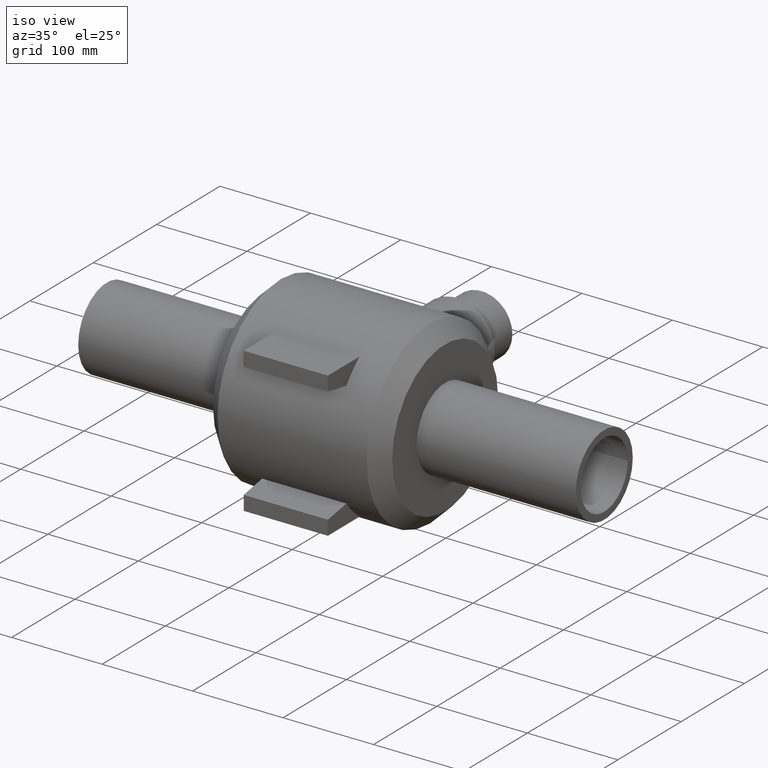
[diagram: clean part render]
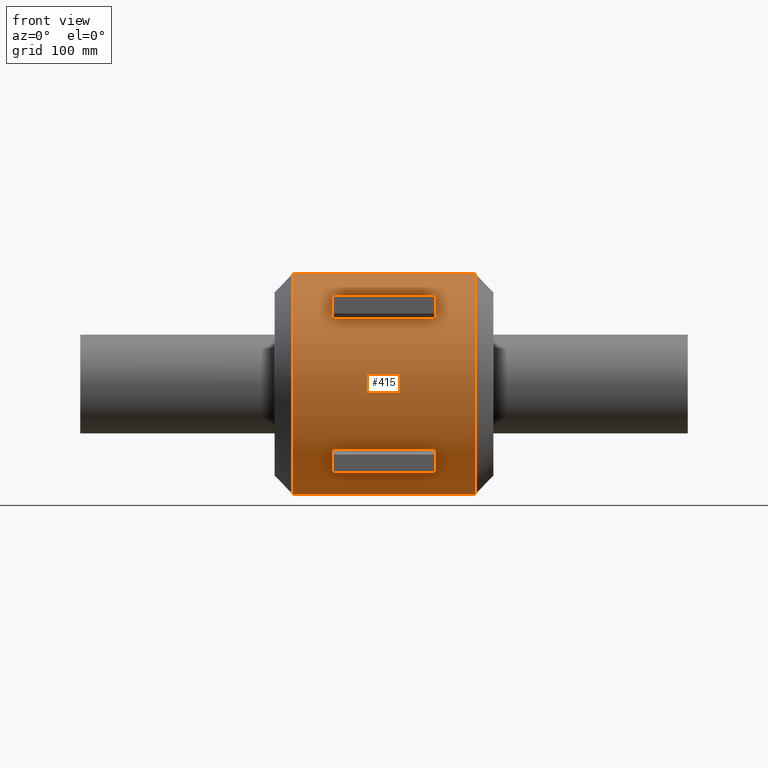
[diagram: tour spotlight — one face highlighted and labeled with its STEP entity id]
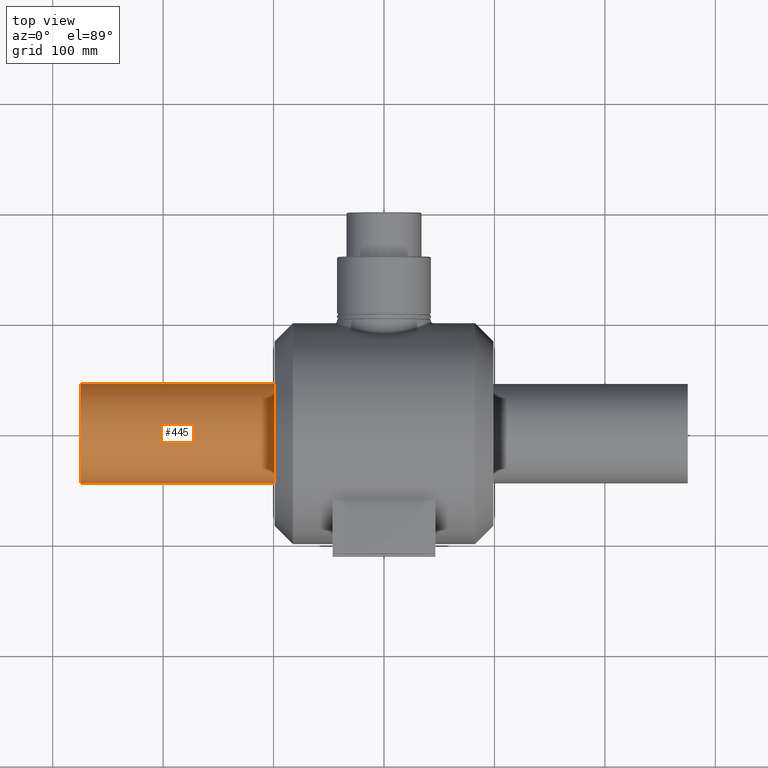
[diagram: tour spotlight — one face highlighted and labeled with its STEP entity id]
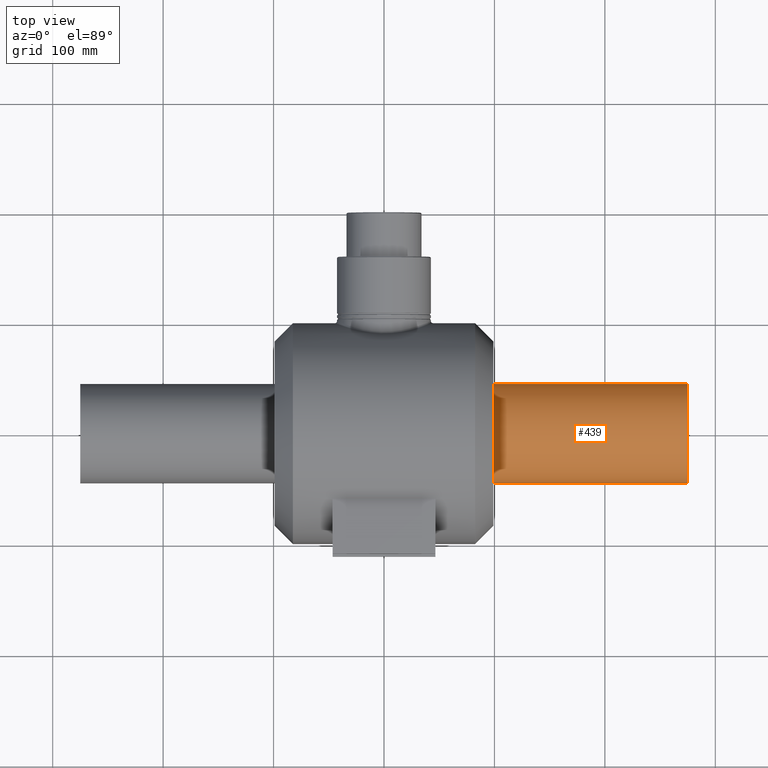
[diagram: tour spotlight — one face highlighted and labeled with its STEP entity id]
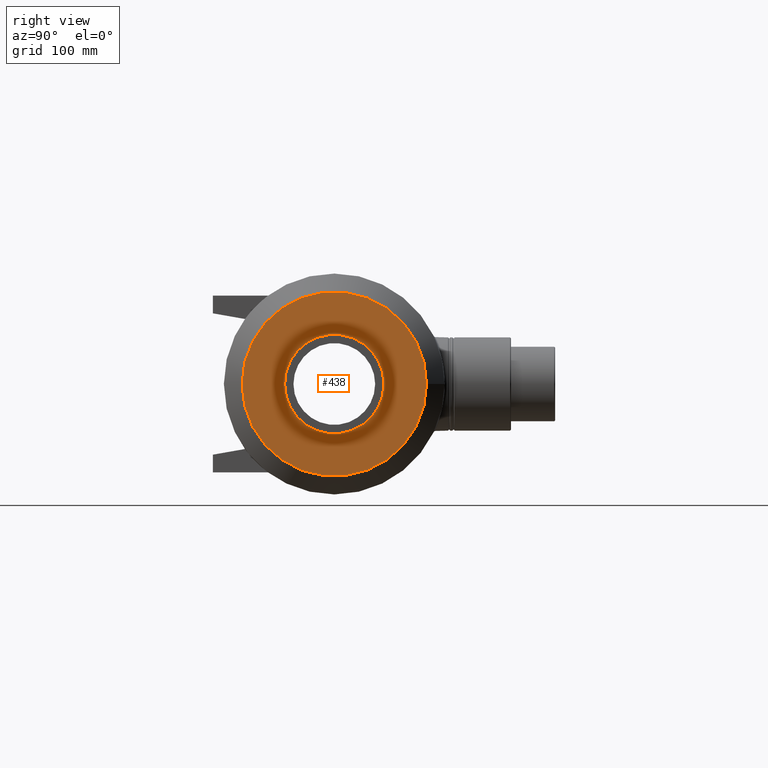
[diagram: tour spotlight — one face highlighted and labeled with its STEP entity id]
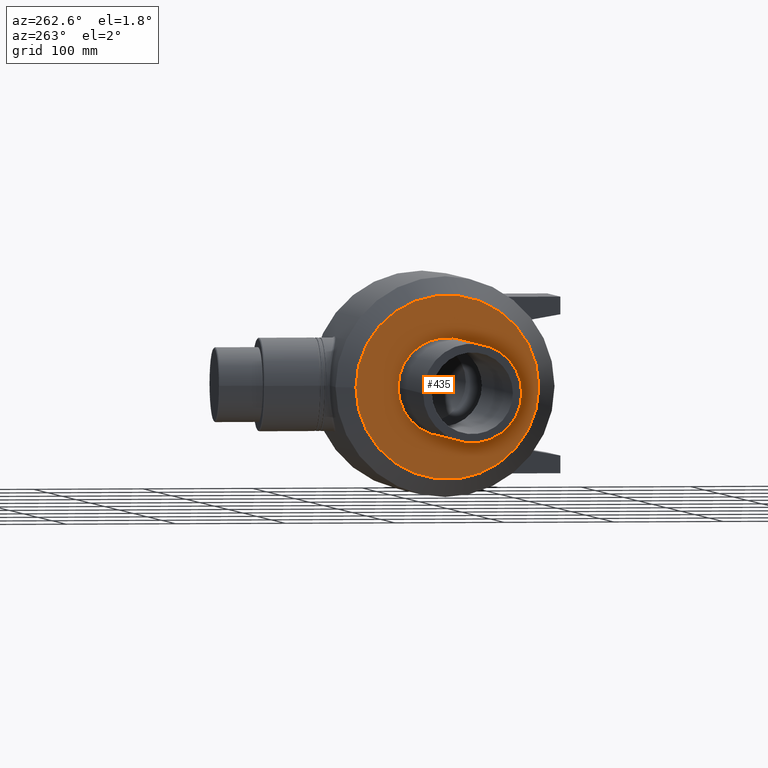
[diagram: tour spotlight — one face highlighted and labeled with its STEP entity id]
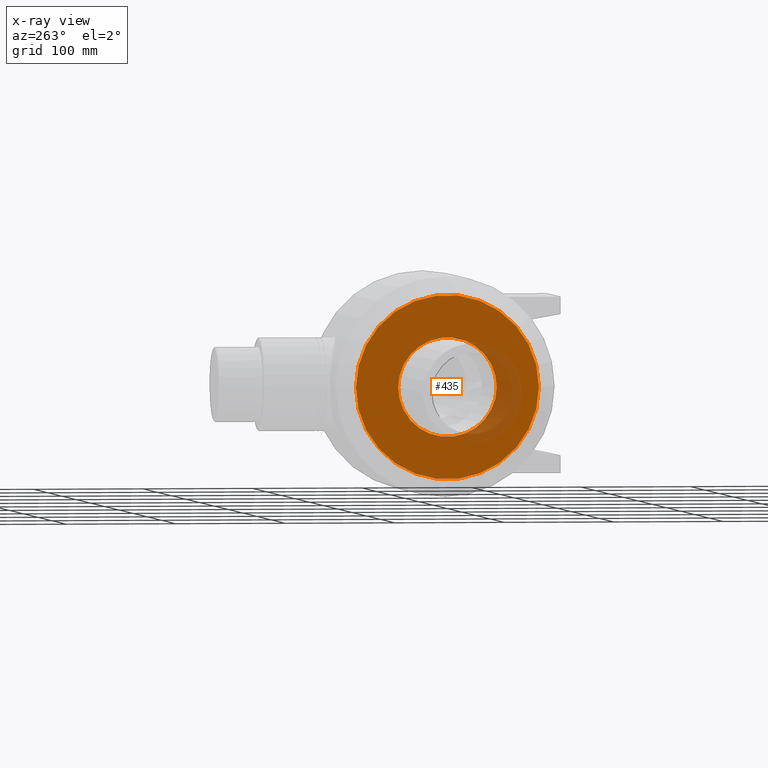
[diagram: x-ray of the same camera — body ghosted, this tour face saturated]
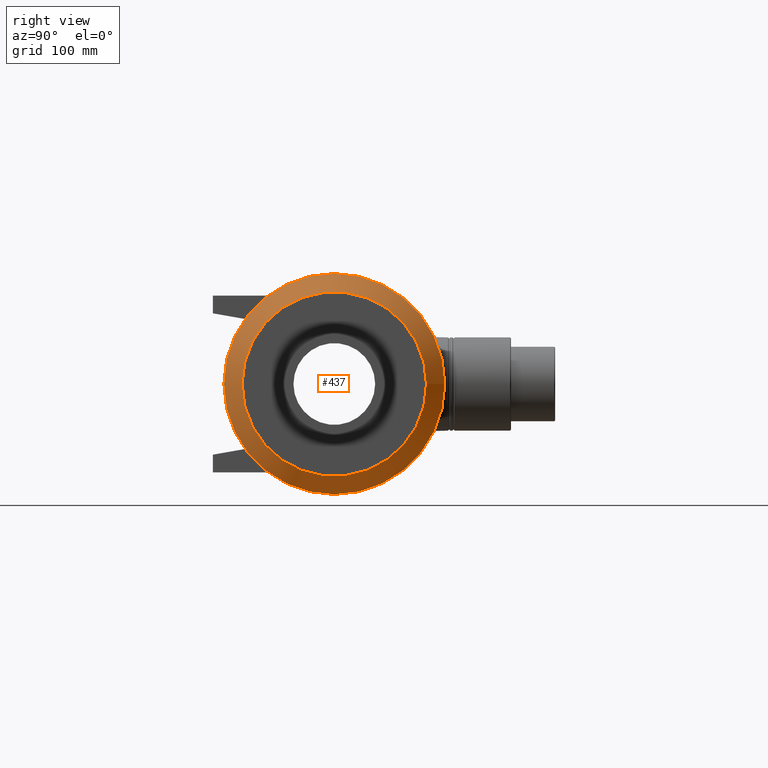
[diagram: tour spotlight — one face highlighted and labeled with its STEP entity id]
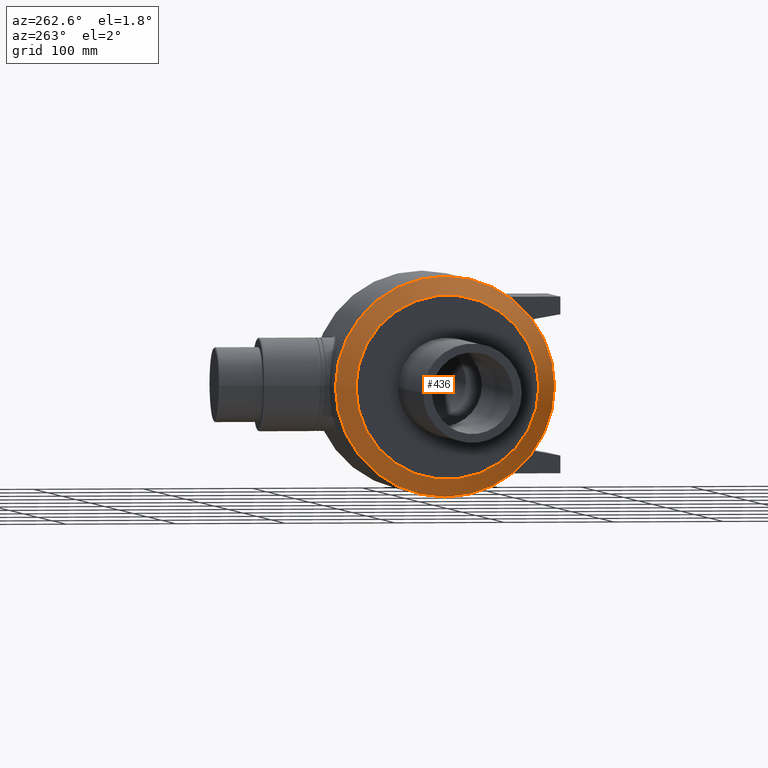
[diagram: tour spotlight — one face highlighted and labeled with its STEP entity id]
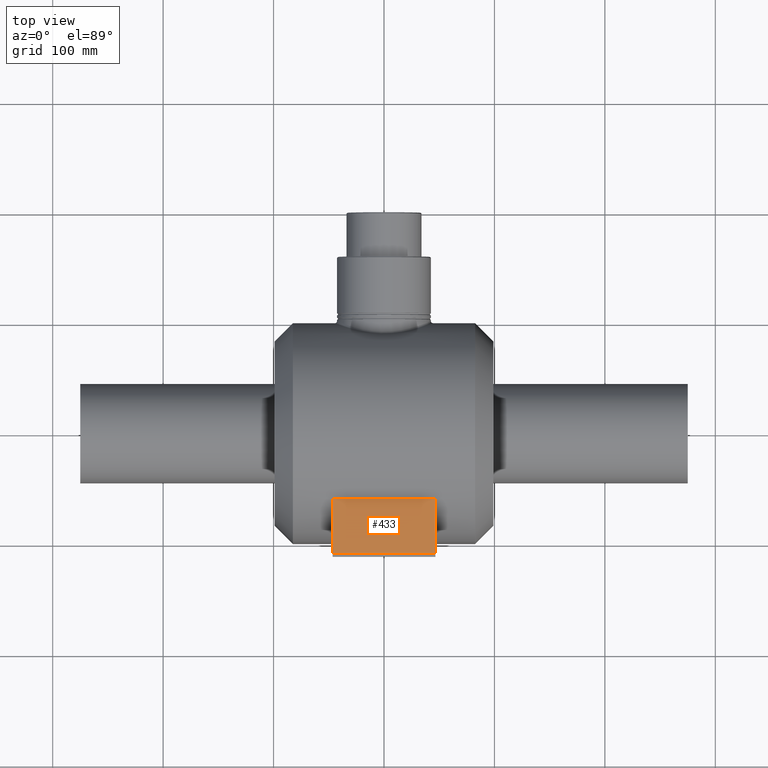
[diagram: tour spotlight — one face highlighted and labeled with its STEP entity id]
A machine part: a face-by-face anatomy tour. The part has 33 B-rep faces; the first image is the clean iso view, then the 8 largest visible faces are spotlighted one at a time (largest first), each with its STEP entity span.

Face 1 — front view, entity #415. In plain terms, the highlighted cylindrical surface (bore or boss wall) has radius 100 mm, axis along (1, 0, 0).
Definition (entity closure, byte-faithful):
#38=LINE('',#835,#58);
#39=LINE('',#838,#59);
#40=LINE('',#843,#60);
#41=LINE('',#846,#61);
#58=VECTOR('',#522,93.);
#59=VECTOR('',#525,93.);
#60=VECTOR('',#528,93.);
#61=VECTOR('',#531,93.);
#79=FACE_BOUND('',#148,.T.);
#80=FACE_BOUND('',#149,.T.);
#81=FACE_BOUND('',#150,.T.);
#82=FACE_BOUND('',#151,.T.);
#104=CYLINDRICAL_SURFACE('',#451,100.);
#114=FACE_OUTER_BOUND('',#147,.T.);
#147=EDGE_LOOP('',(#322));
#148=EDGE_LOOP('',(#323));
#149=EDGE_LOOP('',(#324,#325,#326,#327));
#150=EDGE_LOOP('',(#328,#329,#330,#331));
#151=EDGE_LOOP('',(#332));
#202=B_SPLINE_CURVE_WITH_KNOTS('',3,(#798,#799,#800,#801,#802,#803,#804,
#805,#806,#807,#808,#809,#810,#811,#812,#813,#814,#815,#816,#817,#818,#819,
#820,#821,#822),.UNSPECIFIED.,.T.,.F.,(4,1,1,1,1,1,1,1,1,1,1,1,1,1,1,1,
1,1,1,1,1,1,4),(-38.9669943776629,-38.0392087972423,-37.1114232168218,-35.2558520559807,
-34.01880461542,-32.7817571748593,-31.5447097342985,-30.3076622937378,-29.0706148531771,
-27.8335674126163,-26.5965199720556,-25.3594725314949,-24.7409488112145,
-24.1224250909342,-22.8853776503734,-21.6483302098127,-20.411282769252,
-19.4834971888314,-18.5557116084109,-16.7001404475698,-14.8445692867287,
-13.9167837063082,-12.9889981258876),.UNSPECIFIED.);
#205=CIRCLE('',#452,100.);
#206=CIRCLE('',#453,100.);
#207=CIRCLE('',#454,100.);
#208=CIRCLE('',#455,100.);
#209=CIRCLE('',#456,100.);
#210=CIRCLE('',#457,100.);
#229=VERTEX_POINT('',#770);
#232=VERTEX_POINT('',#827);
#233=VERTEX_POINT('',#829);
#234=VERTEX_POINT('',#831);
#235=VERTEX_POINT('',#832);
#236=VERTEX_POINT('',#834);
#237=VERTEX_POINT('',#836);
#238=VERTEX_POINT('',#839);
#239=VERTEX_POINT('',#840);
#240=VERTEX_POINT('',#842);
#241=VERTEX_POINT('',#844);
#270=EDGE_CURVE('',#229,#229,#202,.T.);
#272=EDGE_CURVE('',#232,#232,#205,.T.);
#273=EDGE_CURVE('',#233,#233,#206,.T.);
#274=EDGE_CURVE('',#234,#235,#207,.T.);
#275=EDGE_CURVE('',#235,#236,#38,.T.);
#276=EDGE_CURVE('',#236,#237,#208,.T.);
#277=EDGE_CURVE('',#237,#234,#39,.T.);
#278=EDGE_CURVE('',#238,#239,#209,.T.);
#279=EDGE_CURVE('',#239,#240,#40,.T.);
#280=EDGE_CURVE('',#240,#241,#210,.T.);
#281=EDGE_CURVE('',#241,#238,#41,.T.);
#322=ORIENTED_EDGE('',*,*,#272,.T.);
#323=ORIENTED_EDGE('',*,*,#273,.F.);
#324=ORIENTED_EDGE('',*,*,#274,.T.);
#325=ORIENTED_EDGE('',*,*,#275,.T.);
#326=ORIENTED_EDGE('',*,*,#276,.T.);
#327=ORIENTED_EDGE('',*,*,#277,.T.);
#328=ORIENTED_EDGE('',*,*,#278,.T.);
#329=ORIENTED_EDGE('',*,*,#279,.T.);
#330=ORIENTED_EDGE('',*,*,#280,.T.);
#331=ORIENTED_EDGE('',*,*,#281,.T.);
#332=ORIENTED_EDGE('',*,*,#270,.F.);
#415=ADVANCED_FACE('',(#114,#79,#80,#81,#82),#104,.T.);
#451=AXIS2_PLACEMENT_3D('',#826,#514,#515);
#452=AXIS2_PLACEMENT_3D('',#828,#516,#517);
#453=AXIS2_PLACEMENT_3D('',#830,#518,#519);
#454=AXIS2_PLACEMENT_3D('',#833,#520,#521);
#455=AXIS2_PLACEMENT_3D('',#837,#523,#524);
#456=AXIS2_PLACEMENT_3D('',#841,#526,#527);
#457=AXIS2_PLACEMENT_3D('',#845,#529,#530);
#514=DIRECTION('center_axis',(1.,0.,0.));
#515=DIRECTION('ref_axis',(0.,1.,0.));
#516=DIRECTION('center_axis',(1.,0.,0.));
#517=DIRECTION('ref_axis',(0.,0.,-1.));
#518=DIRECTION('center_axis',(1.,0.,0.));
#519=DIRECTION('ref_axis',(0.,0.,-1.));
#520=DIRECTION('center_axis',(-1.,0.,0.));
#521=DIRECTION('ref_axis',(0.,1.,0.));
#522=DIRECTION('',(1.,0.,0.));
#523=DIRECTION('center_axis',(1.,0.,0.));
#524=DIRECTION('ref_axis',(0.,1.,0.));
#525=DIRECTION('',(-1.,0.,0.));
#526=DIRECTION('center_axis',(-1.,0.,0.));
#527=DIRECTION('ref_axis',(0.,1.,0.));
#528=DIRECTION('',(1.,0.,0.));
#529=DIRECTION('center_axis',(1.,0.,0.));
#530=DIRECTION('ref_axis',(0.,1.,0.));
#531=DIRECTION('',(-1.,0.,0.));
#770=CARTESIAN_POINT('',(-2.77555756156289E-15,90.0617984914969,-43.4611602753196));
#798=CARTESIAN_POINT('Ctrl Pts',(-5.18352559142492E-5,90.0613990169925,
-43.4612245992563));
#799=CARTESIAN_POINT('Ctrl Pts',(-3.34835087927713,90.0612431636837,-43.4609908259413));
#800=CARTESIAN_POINT('Ctrl Pts',(-10.044498601973,90.4312887069653,-42.7074162645662));
#801=CARTESIAN_POINT('Ctrl Pts',(-22.6166897920548,92.4447370695368,-38.3240439548533));
#802=CARTESIAN_POINT('Ctrl Pts',(-33.888494701673,95.8831817137045,-29.4495645104643));
#803=CARTESIAN_POINT('Ctrl Pts',(-41.6958972374103,98.9249892342406,-16.2884966545444));
#804=CARTESIAN_POINT('Ctrl Pts',(-44.7580109915345,100.24262482037,-3.35187346169151));
#805=CARTESIAN_POINT('Ctrl Pts',(-43.7208884575826,99.7878306526563,9.95863907108315));
#806=CARTESIAN_POINT('Ctrl Pts',(-38.7612391833864,97.7345072755358,22.1969530968394));
#807=CARTESIAN_POINT('Ctrl Pts',(-30.5020502131725,94.7847462345294,32.3217410221326));
#808=CARTESIAN_POINT('Ctrl Pts',(-19.6149246373078,91.8638008142278,39.6678313874762));
#809=CARTESIAN_POINT('Ctrl Pts',(-6.79500124078936,89.9863510190237,43.6237950295));
#810=CARTESIAN_POINT('Ctrl Pts',(4.52960772377941,89.9851505132632,43.6250097289319));
#811=CARTESIAN_POINT('Ctrl Pts',(13.2076710794206,90.9248126216939,41.6455990976097));
#812=CARTESIAN_POINT('Ctrl Pts',(21.4270324919523,92.3506899763053,38.4440156936147));
#813=CARTESIAN_POINT('Ctrl Pts',(30.5036613107744,94.7849754637139,32.3201594101137));
#814=CARTESIAN_POINT('Ctrl Pts',(38.7613802810821,97.7346061130992,22.1978828444219));
#815=CARTESIAN_POINT('Ctrl Pts',(43.3069885685676,99.6168988894181,10.9756005103851));
#816=CARTESIAN_POINT('Ctrl Pts',(44.5827813424108,100.162893676737,0.00323395416983575));
#817=CARTESIAN_POINT('Ctrl Pts',(43.0520511504638,99.5115945492606,-13.1825976018405));
#818=CARTESIAN_POINT('Ctrl Pts',(35.626559683415,96.4212115999915,-28.0991899085921));
#819=CARTESIAN_POINT('Ctrl Pts',(22.614516443001,92.4414337998148,-38.3192026391038));
#820=CARTESIAN_POINT('Ctrl Pts',(10.0452956621543,90.432223826818,-42.7088189044561));
#821=CARTESIAN_POINT('Ctrl Pts',(3.34824720876529,90.0615548703013,-43.4614583725713));
#822=CARTESIAN_POINT('Ctrl Pts',(-5.18352559142492E-5,90.0613990169925,
-43.4612245992563));
#826=CARTESIAN_POINT('Origin',(0.,0.,0.));
#827=CARTESIAN_POINT('',(-82.5,100.,0.));
#828=CARTESIAN_POINT('Origin',(-82.5,0.,0.));
#829=CARTESIAN_POINT('',(82.5,100.,0.));
#830=CARTESIAN_POINT('Origin',(82.5,0.,0.));
#831=CARTESIAN_POINT('',(-46.5,-80.8432575315872,58.8588796332505));
#832=CARTESIAN_POINT('',(-46.5,-60.,80.));
#833=CARTESIAN_POINT('Origin',(-46.5,0.,0.));
#834=CARTESIAN_POINT('',(46.5,-60.,80.));
#835=CARTESIAN_POINT('',(0.,-60.,80.));
#836=CARTESIAN_POINT('',(46.5,-80.8432575315872,58.8588796332505));
#837=CARTESIAN_POINT('Origin',(46.5,0.,0.));
#838=CARTESIAN_POINT('',(0.,-80.8432575315872,58.8588796332505));
#839=CARTESIAN_POINT('',(-46.5,-60.,-80.));
#840=CARTESIAN_POINT('',(-46.5,-80.8432575315872,-58.8588796332505));
#841=CARTESIAN_POINT('Origin',(-46.5,0.,0.));
#842=CARTESIAN_POINT('',(46.5,-80.8432575315872,-58.8588796332505));
#843=CARTESIAN_POINT('',(0.,-80.8432575315872,-58.8588796332505));
#844=CARTESIAN_POINT('',(46.5,-60.,-80.));
#845=CARTESIAN_POINT('Origin',(46.5,0.,0.));
#846=CARTESIAN_POINT('',(0.,-60.,-80.));

Face 2 — top view, entity #445. In plain terms, the highlighted cylindrical surface (bore or boss wall) has radius 45 mm, axis along (1, 0, 0).
Definition (entity closure, byte-faithful):
#102=FACE_BOUND('',#200,.T.);
#111=CYLINDRICAL_SURFACE('',#505,45.);
#143=FACE_OUTER_BOUND('',#199,.T.);
#199=EDGE_LOOP('',(#410));
#200=EDGE_LOOP('',(#411));
#220=CIRCLE('',#487,45.);
#228=CIRCLE('',#504,45.);
#259=VERTEX_POINT('',#909);
#267=VERTEX_POINT('',#934);
#307=EDGE_CURVE('',#259,#259,#220,.T.);
#315=EDGE_CURVE('',#267,#267,#228,.T.);
#410=ORIENTED_EDGE('',*,*,#307,.F.);
#411=ORIENTED_EDGE('',*,*,#315,.T.);
#445=ADVANCED_FACE('',(#143,#102),#111,.T.);
#487=AXIS2_PLACEMENT_3D('',#910,#606,#607);
#504=AXIS2_PLACEMENT_3D('',#935,#640,#641);
#505=AXIS2_PLACEMENT_3D('',#936,#642,#643);
#606=DIRECTION('center_axis',(1.,0.,0.));
#607=DIRECTION('ref_axis',(0.,0.,-1.));
#640=DIRECTION('center_axis',(1.,0.,0.));
#641=DIRECTION('ref_axis',(0.,0.,-1.));
#642=DIRECTION('center_axis',(1.,0.,0.));
#643=DIRECTION('ref_axis',(0.,1.,0.));
#909=CARTESIAN_POINT('',(-99.,45.,0.));
#910=CARTESIAN_POINT('Origin',(-99.,0.,0.));
#934=CARTESIAN_POINT('',(-275.,45.,0.));
#935=CARTESIAN_POINT('Origin',(-275.,0.,0.));
#936=CARTESIAN_POINT('Origin',(-187.,0.,0.));

Face 3 — top view, entity #439. In plain terms, the highlighted cylindrical surface (bore or boss wall) has radius 45 mm, axis along (1, 0, 0).
Definition (entity closure, byte-faithful):
#95=FACE_BOUND('',#188,.T.);
#108=CYLINDRICAL_SURFACE('',#493,45.);
#138=FACE_OUTER_BOUND('',#187,.T.);
#187=EDGE_LOOP('',(#398));
#188=EDGE_LOOP('',(#399));
#222=CIRCLE('',#492,45.);
#223=CIRCLE('',#494,45.);
#261=VERTEX_POINT('',#916);
#262=VERTEX_POINT('',#919);
#309=EDGE_CURVE('',#261,#261,#222,.T.);
#310=EDGE_CURVE('',#262,#262,#223,.T.);
#398=ORIENTED_EDGE('',*,*,#310,.F.);
#399=ORIENTED_EDGE('',*,*,#309,.T.);
#439=ADVANCED_FACE('',(#138,#95),#108,.T.);
#492=AXIS2_PLACEMENT_3D('',#917,#616,#617);
#493=AXIS2_PLACEMENT_3D('',#918,#618,#619);
#494=AXIS2_PLACEMENT_3D('',#920,#620,#621);
#616=DIRECTION('center_axis',(1.,0.,0.));
#617=DIRECTION('ref_axis',(0.,0.,-1.));
#618=DIRECTION('center_axis',(1.,0.,0.));
#619=DIRECTION('ref_axis',(0.,1.,0.));
#620=DIRECTION('center_axis',(1.,0.,0.));
#621=DIRECTION('ref_axis',(0.,0.,-1.));
#916=CARTESIAN_POINT('',(99.,45.,0.));
#917=CARTESIAN_POINT('Origin',(99.,0.,0.));
#918=CARTESIAN_POINT('Origin',(187.,0.,0.));
#919=CARTESIAN_POINT('',(275.,45.,0.));
#920=CARTESIAN_POINT('Origin',(275.,0.,0.));

Face 4 — right view, entity #438. In plain terms, the highlighted planar face has unit normal (1, 0, 0).
Definition (entity closure, byte-faithful):
#31=PLANE('',#491);
#94=FACE_BOUND('',#186,.T.);
#137=FACE_OUTER_BOUND('',#185,.T.);
#185=EDGE_LOOP('',(#396));
#186=EDGE_LOOP('',(#397));
#221=CIRCLE('',#490,83.5);
#222=CIRCLE('',#492,45.);
#260=VERTEX_POINT('',#913);
#261=VERTEX_POINT('',#916);
#308=EDGE_CURVE('',#260,#260,#221,.T.);
#309=EDGE_CURVE('',#261,#261,#222,.T.);
#396=ORIENTED_EDGE('',*,*,#308,.T.);
#397=ORIENTED_EDGE('',*,*,#309,.F.);
#438=ADVANCED_FACE('',(#137,#94),#31,.T.);
#490=AXIS2_PLACEMENT_3D('',#914,#612,#613);
#491=AXIS2_PLACEMENT_3D('',#915,#614,#615);
#492=AXIS2_PLACEMENT_3D('',#917,#616,#617);
#612=DIRECTION('center_axis',(1.,0.,0.));
#613=DIRECTION('ref_axis',(0.,0.,-1.));
#614=DIRECTION('center_axis',(1.,0.,0.));
#615=DIRECTION('ref_axis',(0.,0.,-1.));
#616=DIRECTION('center_axis',(1.,0.,0.));
#617=DIRECTION('ref_axis',(0.,0.,-1.));
#913=CARTESIAN_POINT('',(99.,83.5,0.));
#914=CARTESIAN_POINT('Origin',(99.,0.,0.));
#915=CARTESIAN_POINT('Origin',(99.,45.,0.));
#916=CARTESIAN_POINT('',(99.,45.,0.));
#917=CARTESIAN_POINT('Origin',(99.,0.,0.));

Face 5 — auxiliary view, entity #435. An x-ray twin of the same camera follows (body ghosted, this face saturated) — the face is partly hidden behind the body. In plain terms, the highlighted planar face has unit normal (-1, 0, 0).
Definition (entity closure, byte-faithful):
#30=PLANE('',#485);
#91=FACE_BOUND('',#180,.T.);
#134=FACE_OUTER_BOUND('',#179,.T.);
#179=EDGE_LOOP('',(#390));
#180=EDGE_LOOP('',(#391));
#219=CIRCLE('',#486,83.5);
#220=CIRCLE('',#487,45.);
#258=VERTEX_POINT('',#907);
#259=VERTEX_POINT('',#909);
#306=EDGE_CURVE('',#258,#258,#219,.T.);
#307=EDGE_CURVE('',#259,#259,#220,.T.);
#390=ORIENTED_EDGE('',*,*,#306,.F.);
#391=ORIENTED_EDGE('',*,*,#307,.T.);
#435=ADVANCED_FACE('',(#134,#91),#30,.T.);
#485=AXIS2_PLACEMENT_3D('',#906,#602,#603);
#486=AXIS2_PLACEMENT_3D('',#908,#604,#605);
#487=AXIS2_PLACEMENT_3D('',#910,#606,#607);
#602=DIRECTION('center_axis',(-1.,0.,0.));
#603=DIRECTION('ref_axis',(0.,0.,1.));
#604=DIRECTION('center_axis',(1.,0.,0.));
#605=DIRECTION('ref_axis',(0.,0.,-1.));
#606=DIRECTION('center_axis',(1.,0.,0.));
#607=DIRECTION('ref_axis',(0.,0.,-1.));
#906=CARTESIAN_POINT('Origin',(-99.,83.5,0.));
#907=CARTESIAN_POINT('',(-99.,83.5,0.));
#908=CARTESIAN_POINT('Origin',(-99.,0.,0.));
#909=CARTESIAN_POINT('',(-99.,45.,0.));
#910=CARTESIAN_POINT('Origin',(-99.,0.,0.));

Face 6 — right view, entity #437. In plain terms, the highlighted conical surface has half-angle 45 deg.
Definition (entity closure, byte-faithful):
#37=CONICAL_SURFACE('',#489,91.75,45.);
#93=FACE_BOUND('',#184,.T.);
#136=FACE_OUTER_BOUND('',#183,.T.);
#183=EDGE_LOOP('',(#394));
#184=EDGE_LOOP('',(#395));
#206=CIRCLE('',#453,100.);
#221=CIRCLE('',#490,83.5);
#233=VERTEX_POINT('',#829);
#260=VERTEX_POINT('',#913);
#273=EDGE_CURVE('',#233,#233,#206,.T.);
#308=EDGE_CURVE('',#260,#260,#221,.T.);
#394=ORIENTED_EDGE('',*,*,#308,.F.);
#395=ORIENTED_EDGE('',*,*,#273,.T.);
#437=ADVANCED_FACE('',(#136,#93),#37,.T.);
#453=AXIS2_PLACEMENT_3D('',#830,#518,#519);
#489=AXIS2_PLACEMENT_3D('',#912,#610,#611);
#490=AXIS2_PLACEMENT_3D('',#914,#612,#613);
#518=DIRECTION('center_axis',(1.,0.,0.));
#519=DIRECTION('ref_axis',(0.,0.,-1.));
#610=DIRECTION('center_axis',(-1.,0.,0.));
#611=DIRECTION('ref_axis',(0.,1.,0.));
#612=DIRECTION('center_axis',(1.,0.,0.));
#613=DIRECTION('ref_axis',(0.,0.,-1.));
#829=CARTESIAN_POINT('',(82.5,100.,0.));
#830=CARTESIAN_POINT('Origin',(82.5,0.,0.));
#912=CARTESIAN_POINT('Origin',(90.75,0.,0.));
#913=CARTESIAN_POINT('',(99.,83.5,0.));
#914=CARTESIAN_POINT('Origin',(99.,0.,0.));

Face 7 — auxiliary view, entity #436. In plain terms, the highlighted conical surface has half-angle 45 deg.
Definition (entity closure, byte-faithful):
#36=CONICAL_SURFACE('',#488,91.75,45.);
#92=FACE_BOUND('',#182,.T.);
#135=FACE_OUTER_BOUND('',#181,.T.);
#181=EDGE_LOOP('',(#392));
#182=EDGE_LOOP('',(#393));
#205=CIRCLE('',#452,100.);
#219=CIRCLE('',#486,83.5);
#232=VERTEX_POINT('',#827);
#258=VERTEX_POINT('',#907);
#272=EDGE_CURVE('',#232,#232,#205,.T.);
#306=EDGE_CURVE('',#258,#258,#219,.T.);
#392=ORIENTED_EDGE('',*,*,#272,.F.);
#393=ORIENTED_EDGE('',*,*,#306,.T.);
#436=ADVANCED_FACE('',(#135,#92),#36,.T.);
#452=AXIS2_PLACEMENT_3D('',#828,#516,#517);
#486=AXIS2_PLACEMENT_3D('',#908,#604,#605);
#488=AXIS2_PLACEMENT_3D('',#911,#608,#609);
#516=DIRECTION('center_axis',(1.,0.,0.));
#517=DIRECTION('ref_axis',(0.,0.,-1.));
#604=DIRECTION('center_axis',(1.,0.,0.));
#605=DIRECTION('ref_axis',(0.,0.,-1.));
#608=DIRECTION('center_axis',(1.,0.,0.));
#609=DIRECTION('ref_axis',(0.,1.,0.));
#827=CARTESIAN_POINT('',(-82.5,100.,0.));
#828=CARTESIAN_POINT('Origin',(-82.5,0.,0.));
#907=CARTESIAN_POINT('',(-99.,83.5,0.));
#908=CARTESIAN_POINT('Origin',(-99.,0.,0.));
#911=CARTESIAN_POINT('Origin',(-90.75,0.,0.));

Face 8 — top view, entity #433. In plain terms, the highlighted planar face has unit normal (0, 0, 1).
Definition (entity closure, byte-faithful):
#28=PLANE('',#483);
#38=LINE('',#835,#58);
#50=LINE('',#891,#70);
#56=LINE('',#902,#76);
#57=LINE('',#904,#77);
#58=VECTOR('',#522,93.);
#70=VECTOR('',#586,50.);
#76=VECTOR('',#596,93.);
#77=VECTOR('',#599,50.);
#132=FACE_OUTER_BOUND('',#177,.T.);
#177=EDGE_LOOP('',(#382,#383,#384,#385));
#235=VERTEX_POINT('',#832);
#236=VERTEX_POINT('',#834);
#254=VERTEX_POINT('',#890);
#257=VERTEX_POINT('',#900);
#275=EDGE_CURVE('',#235,#236,#38,.T.);
#298=EDGE_CURVE('',#254,#235,#50,.T.);
#304=EDGE_CURVE('',#254,#257,#56,.T.);
#305=EDGE_CURVE('',#236,#257,#57,.T.);
#382=ORIENTED_EDGE('',*,*,#304,.T.);
#383=ORIENTED_EDGE('',*,*,#305,.F.);
#384=ORIENTED_EDGE('',*,*,#275,.F.);
#385=ORIENTED_EDGE('',*,*,#298,.F.);
#433=ADVANCED_FACE('',(#132),#28,.T.);
#483=AXIS2_PLACEMENT_3D('',#903,#597,#598);
#522=DIRECTION('',(1.,0.,0.));
#586=DIRECTION('',(0.,1.,0.));
#596=DIRECTION('',(1.,0.,0.));
#597=DIRECTION('center_axis',(0.,0.,1.));
#598=DIRECTION('ref_axis',(0.,-1.,0.));
#599=DIRECTION('',(0.,-1.,0.));
#832=CARTESIAN_POINT('',(-46.5,-60.,80.));
#834=CARTESIAN_POINT('',(46.5,-60.,80.));
#835=CARTESIAN_POINT('',(0.,-60.,80.));
#890=CARTESIAN_POINT('',(-46.5,-110.,80.));
#891=CARTESIAN_POINT('',(-46.5,-60.,80.));
#900=CARTESIAN_POINT('',(46.5,-110.,80.));
#902=CARTESIAN_POINT('',(0.,-110.,80.));
#903=CARTESIAN_POINT('Origin',(0.,-60.,80.));
#904=CARTESIAN_POINT('',(46.5,-60.,80.));